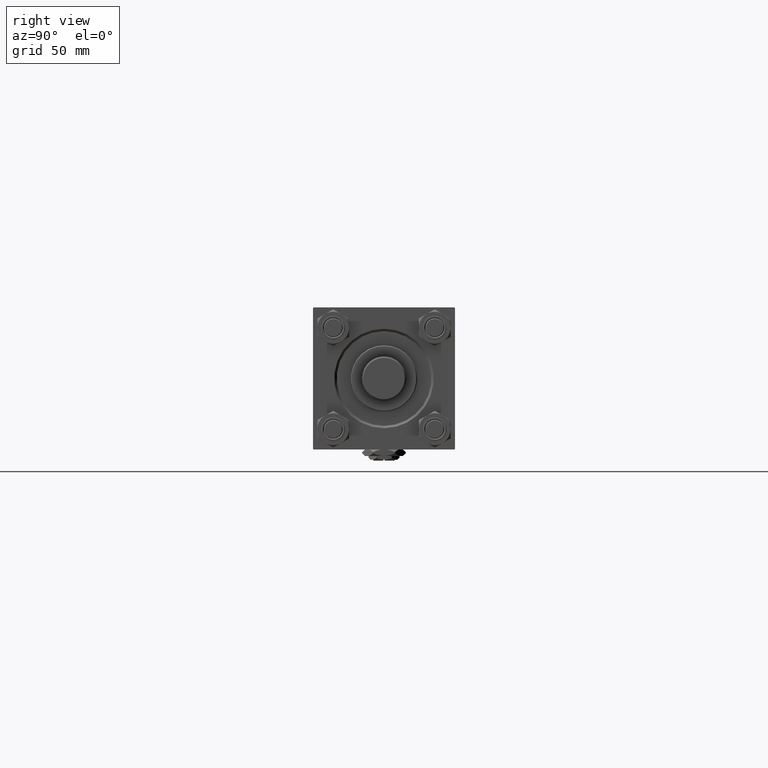
[diagram: clean part render]
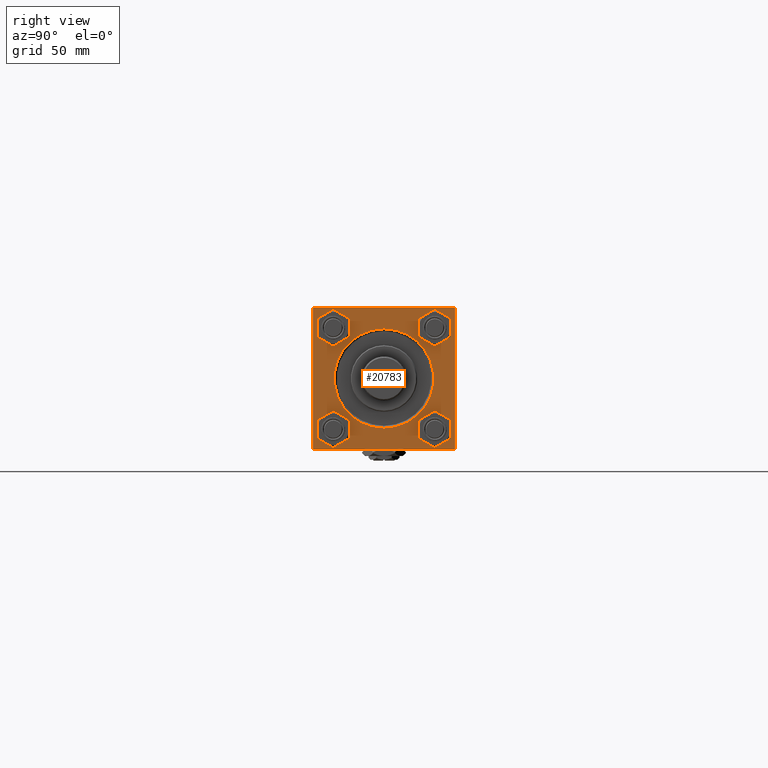
[diagram: same view with one face highlighted and labeled with its STEP entity id]
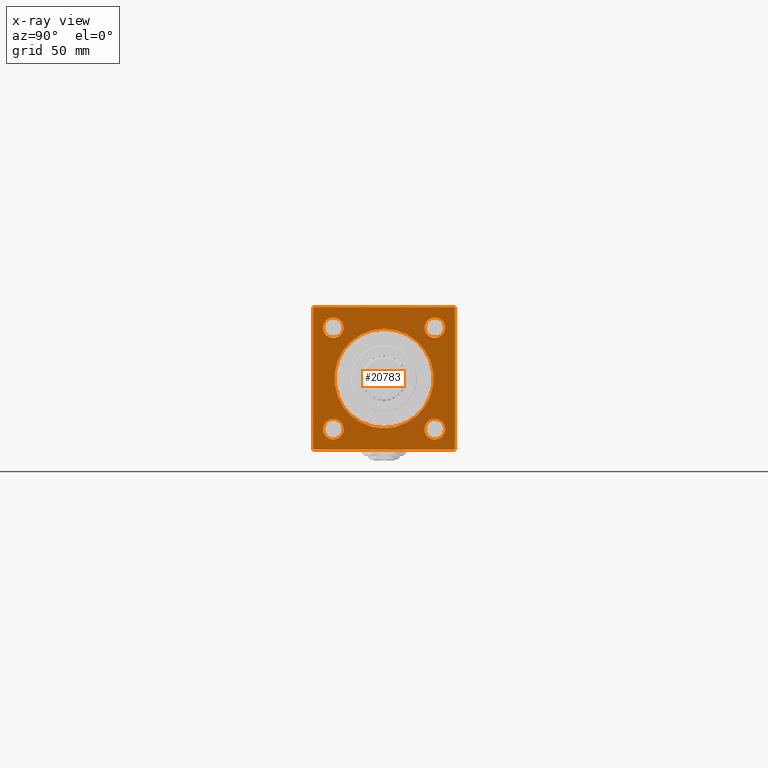
[diagram: x-ray of the same camera — body ghosted, the highlighted face saturated]
A machine part, right view. The second image highlights one B-rep face of the part: STEP entity #20783.
The next image is the same camera in x-ray: the body ghosted, the highlighted face saturated — about 0% of this face is hidden behind the body in this view.
In plain terms, the highlighted planar face has unit normal (-1, 0, 0).
Its self-contained STEP definition (entity closure, byte-faithful):
#265 = CIRCLE ( 'NONE', #44229, 31.49999999999997158 ) ;
#661 = VECTOR ( 'NONE', #19971, 1000.000000000000000 ) ;
#707 = AXIS2_PLACEMENT_3D ( 'NONE', #5040, #21151, #23496 ) ;
#818 = EDGE_CURVE ( 'NONE', #30119, #29970, #12617, .T. ) ;
#936 = DIRECTION ( 'NONE',  ( -1.000000000000000000, -0.000000000000000000, -0.000000000000000000 ) ) ;
#1048 = CARTESIAN_POINT ( 'NONE',  ( 337.9999999999999432, 44.50000000000001421, -45.00000000000000000 ) ) ;
#1353 = EDGE_CURVE ( 'NONE', #13135, #18709, #6486, .T. ) ;
#1443 = DIRECTION ( 'NONE',  ( 0.000000000000000000, 0.000000000000000000, 1.000000000000000000 ) ) ;
#1925 = CARTESIAN_POINT ( 'NONE',  ( 337.9999999999999432, -45.00000000000000000, 44.49999999999998579 ) ) ;
#2301 = DIRECTION ( 'NONE',  ( 0.000000000000000000, -1.000000000000000000, 0.000000000000000000 ) ) ;
#2604 = VERTEX_POINT ( 'NONE', #36918 ) ;
#2655 = EDGE_CURVE ( 'NONE', #15344, #37682, #28987, .T. ) ;
#3373 = CIRCLE ( 'NONE', #37997, 6.500000000000005329 ) ;
#4329 = AXIS2_PLACEMENT_3D ( 'NONE', #19529, #23493, #39655 ) ;
#4353 = LINE ( 'NONE', #24437, #43218 ) ;
#5040 = CARTESIAN_POINT ( 'NONE',  ( 337.9999999999999432, 32.14999999999999147, -32.15000000000000568 ) ) ;
#5101 = CARTESIAN_POINT ( 'NONE',  ( 337.9999999999999432, -45.00000000000000000, 44.49999999999998579 ) ) ;
#5125 = VECTOR ( 'NONE', #2301, 1000.000000000000000 ) ;
#5239 = CARTESIAN_POINT ( 'NONE',  ( 337.9999999999999432, 3.857637417314158745E-15, 31.49999999999997158 ) ) ;
#5437 = ORIENTED_EDGE ( 'NONE', *, *, #8575, .T. ) ;
#5463 = FACE_BOUND ( 'NONE', #7660, .T. ) ;
#6421 = DIRECTION ( 'NONE',  ( 0.000000000000000000, 0.000000000000000000, 1.000000000000000000 ) ) ;
#6486 = CIRCLE ( 'NONE', #14892, 6.500000000000005329 ) ;
#6490 = AXIS2_PLACEMENT_3D ( 'NONE', #17830, #33983, #13870 ) ;
#6811 = CARTESIAN_POINT ( 'NONE',  ( 337.9999999999999432, 32.14999999999999147, -38.65000000000001279 ) ) ;
#6879 = VERTEX_POINT ( 'NONE', #38538 ) ;
#7375 = DIRECTION ( 'NONE',  ( 0.000000000000000000, -0.7071067811865474617, 0.7071067811865474617 ) ) ;
#7660 = EDGE_LOOP ( 'NONE', ( #50433, #9749 ) ) ;
#7831 = CARTESIAN_POINT ( 'NONE',  ( 337.9999999999999432, 45.00000000000001421, 45.00000000000000000 ) ) ;
#8365 = EDGE_CURVE ( 'NONE', #18709, #13135, #20130, .T. ) ;
#8410 = EDGE_CURVE ( 'NONE', #32238, #40380, #15042, .T. ) ;
#8510 = ORIENTED_EDGE ( 'NONE', *, *, #25159, .T. ) ;
#8575 = EDGE_CURVE ( 'NONE', #36207, #33245, #29438, .T. ) ;
#8916 = DIRECTION ( 'NONE',  ( -1.000000000000000000, 0.000000000000000000, -0.000000000000000000 ) ) ;
#9436 = EDGE_LOOP ( 'NONE', ( #30933, #33582 ) ) ;
#9452 = AXIS2_PLACEMENT_3D ( 'NONE', #21576, #8916, #37739 ) ;
#9498 = CIRCLE ( 'NONE', #22990, 31.49999999999997158 ) ;
#9749 = ORIENTED_EDGE ( 'NONE', *, *, #14999, .T. ) ;
#9935 = ORIENTED_EDGE ( 'NONE', *, *, #26340, .T. ) ;
#10004 = VECTOR ( 'NONE', #7375, 1000.000000000000114 ) ;
#10193 = ORIENTED_EDGE ( 'NONE', *, *, #14184, .F. ) ;
#11193 = EDGE_CURVE ( 'NONE', #40016, #26273, #52310, .T. ) ;
#11537 = VERTEX_POINT ( 'NONE', #28651 ) ;
#11572 = VERTEX_POINT ( 'NONE', #5101 ) ;
#11653 = CARTESIAN_POINT ( 'NONE',  ( 337.9999999999999432, 45.00000000000001421, -44.49999999999997158 ) ) ;
#11687 = EDGE_LOOP ( 'NONE', ( #36718, #20064 ) ) ;
#11720 = ORIENTED_EDGE ( 'NONE', *, *, #24142, .T. ) ;
#12378 = VECTOR ( 'NONE', #28752, 1000.000000000000114 ) ;
#12617 = LINE ( 'NONE', #23985, #12378 ) ;
#12888 = FACE_BOUND ( 'NONE', #9436, .T. ) ;
#13135 = VERTEX_POINT ( 'NONE', #14192 ) ;
#13870 = DIRECTION ( 'NONE',  ( 0.000000000000000000, 0.000000000000000000, 1.000000000000000000 ) ) ;
#14184 = EDGE_CURVE ( 'NONE', #30119, #37682, #22374, .T. ) ;
#14192 = CARTESIAN_POINT ( 'NONE',  ( 337.9999999999999432, 32.14999999999999147, -25.64999999999999858 ) ) ;
#14802 = ORIENTED_EDGE ( 'NONE', *, *, #42095, .T. ) ;
#14892 = AXIS2_PLACEMENT_3D ( 'NONE', #41254, #49700, #25620 ) ;
#14999 = EDGE_CURVE ( 'NONE', #26273, #40016, #24586, .T. ) ;
#15042 = LINE ( 'NONE', #51282, #10004 ) ;
#15101 = AXIS2_PLACEMENT_3D ( 'NONE', #21528, #25239, #1443 ) ;
#15344 = VERTEX_POINT ( 'NONE', #23690 ) ;
#16104 = ORIENTED_EDGE ( 'NONE', *, *, #19727, .F. ) ;
#17830 = CARTESIAN_POINT ( 'NONE',  ( 337.9999999999999432, 32.14999999999999147, 32.15000000000000568 ) ) ;
#17865 = CARTESIAN_POINT ( 'NONE',  ( 337.9999999999999432, -32.14999999999997726, 25.65000000000000568 ) ) ;
#18076 = EDGE_CURVE ( 'NONE', #32788, #32763, #9498, .T. ) ;
#18212 = ORIENTED_EDGE ( 'NONE', *, *, #29649, .T. ) ;
#18314 = CARTESIAN_POINT ( 'NONE',  ( 337.9999999999999432, 0.000000000000000000, 0.000000000000000000 ) ) ;
#18709 = VERTEX_POINT ( 'NONE', #6811 ) ;
#19529 = CARTESIAN_POINT ( 'NONE',  ( 337.9999999999999432, -32.14999999999997726, -32.15000000000001279 ) ) ;
#19727 = EDGE_CURVE ( 'NONE', #32238, #29970, #4353, .T. ) ;
#19792 = DIRECTION ( 'NONE',  ( 0.000000000000000000, 0.000000000000000000, 1.000000000000000000 ) ) ;
#19850 = CARTESIAN_POINT ( 'NONE',  ( 337.9999999999999432, 45.00000000000001421, 44.49999999999994316 ) ) ;
#19971 = DIRECTION ( 'NONE',  ( 0.000000000000000000, -1.000000000000000000, -1.541976423090495140E-16 ) ) ;
#20064 = ORIENTED_EDGE ( 'NONE', *, *, #50722, .T. ) ;
#20130 = CIRCLE ( 'NONE', #707, 6.500000000000005329 ) ;
#20783 = ADVANCED_FACE ( 'NONE', ( #5463, #12888, #33518, #29024, #49631, #45671 ), #21835, .F. ) ;
#20917 = VECTOR ( 'NONE', #25971, 1000.000000000000000 ) ;
#21151 = DIRECTION ( 'NONE',  ( -1.000000000000000000, -0.000000000000000000, -0.000000000000000000 ) ) ;
#21528 = CARTESIAN_POINT ( 'NONE',  ( 337.9999999999999432, 32.14999999999999147, 32.15000000000000568 ) ) ;
#21576 = CARTESIAN_POINT ( 'NONE',  ( 337.9999999999999432, 0.000000000000000000, 0.000000000000000000 ) ) ;
#21835 = PLANE ( 'NONE',  #9452 ) ;
#21865 = CARTESIAN_POINT ( 'NONE',  ( 337.9999999999999432, 0.000000000000000000, -31.49999999999997158 ) ) ;
#22374 = LINE ( 'NONE', #38541, #5125 ) ;
#22990 = AXIS2_PLACEMENT_3D ( 'NONE', #18314, #38946, #6421 ) ;
#23274 = CARTESIAN_POINT ( 'NONE',  ( 337.9999999999999432, -45.00000000000000000, 44.99999999999998579 ) ) ;
#23493 = DIRECTION ( 'NONE',  ( -1.000000000000000000, -0.000000000000000000, -0.000000000000000000 ) ) ;
#23496 = DIRECTION ( 'NONE',  ( 0.000000000000000000, 0.000000000000000000, 1.000000000000000000 ) ) ;
#23690 = CARTESIAN_POINT ( 'NONE',  ( 337.9999999999999432, -44.99999999999999289, -44.49999999999997158 ) ) ;
#23759 = CARTESIAN_POINT ( 'NONE',  ( 337.9999999999999432, -32.14999999999997726, 32.15000000000001279 ) ) ;
#23846 = ORIENTED_EDGE ( 'NONE', *, *, #8410, .T. ) ;
#23985 = CARTESIAN_POINT ( 'NONE',  ( 337.9999999999999432, 45.00000000000001421, -44.50000000000000000 ) ) ;
#24142 = EDGE_CURVE ( 'NONE', #11572, #15344, #43667, .T. ) ;
#24214 = CARTESIAN_POINT ( 'NONE',  ( 337.9999999999999432, -44.49999999999998579, -45.00000000000000000 ) ) ;
#24437 = CARTESIAN_POINT ( 'NONE',  ( 337.9999999999999432, 45.00000000000001421, 45.00000000000000000 ) ) ;
#24586 = CIRCLE ( 'NONE', #4329, 6.500000000000005329 ) ;
#25159 = EDGE_CURVE ( 'NONE', #40380, #11537, #44066, .T. ) ;
#25239 = DIRECTION ( 'NONE',  ( -1.000000000000000000, -0.000000000000000000, -0.000000000000000000 ) ) ;
#25620 = DIRECTION ( 'NONE',  ( 0.000000000000000000, 0.000000000000000000, 1.000000000000000000 ) ) ;
#25670 = ORIENTED_EDGE ( 'NONE', *, *, #818, .T. ) ;
#25971 = DIRECTION ( 'NONE',  ( -0.000000000000000000, -0.7071067811865081598, -0.7071067811865868746 ) ) ;
#26273 = VERTEX_POINT ( 'NONE', #39587 ) ;
#26340 = EDGE_CURVE ( 'NONE', #11537, #11572, #46353, .T. ) ;
#27474 = DIRECTION ( 'NONE',  ( 0.000000000000000000, 0.000000000000000000, 1.000000000000000000 ) ) ;
#27790 = ORIENTED_EDGE ( 'NONE', *, *, #18076, .T. ) ;
#28153 = EDGE_CURVE ( 'NONE', #2604, #6879, #45523, .T. ) ;
#28475 = CARTESIAN_POINT ( 'NONE',  ( 337.9999999999999432, 0.000000000000000000, 0.000000000000000000 ) ) ;
#28651 = CARTESIAN_POINT ( 'NONE',  ( 337.9999999999999432, -44.50000000000002842, 44.99999999999998579 ) ) ;
#28752 = DIRECTION ( 'NONE',  ( -0.000000000000000000, 0.7071067811865474617, 0.7071067811865474617 ) ) ;
#28987 = LINE ( 'NONE', #24214, #46251 ) ;
#29024 = FACE_BOUND ( 'NONE', #34346, .T. ) ;
#29438 = CIRCLE ( 'NONE', #46320, 6.500000000000005329 ) ;
#29514 = AXIS2_PLACEMENT_3D ( 'NONE', #36384, #936, #48809 ) ;
#29649 = EDGE_CURVE ( 'NONE', #33245, #36207, #3373, .T. ) ;
#29970 = VERTEX_POINT ( 'NONE', #11653 ) ;
#30119 = VERTEX_POINT ( 'NONE', #1048 ) ;
#30843 = CARTESIAN_POINT ( 'NONE',  ( 337.9999999999999432, 44.49999999999995737, 45.00000000000000000 ) ) ;
#30933 = ORIENTED_EDGE ( 'NONE', *, *, #8365, .T. ) ;
#32190 = DIRECTION ( 'NONE',  ( -1.000000000000000000, -0.000000000000000000, -0.000000000000000000 ) ) ;
#32238 = VERTEX_POINT ( 'NONE', #19850 ) ;
#32395 = DIRECTION ( 'NONE',  ( 0.000000000000000000, 0.000000000000000000, -1.000000000000000000 ) ) ;
#32506 = CARTESIAN_POINT ( 'NONE',  ( 337.9999999999999432, -32.14999999999997726, 32.15000000000001279 ) ) ;
#32710 = CIRCLE ( 'NONE', #6490, 6.500000000000005329 ) ;
#32763 = VERTEX_POINT ( 'NONE', #5239 ) ;
#32788 = VERTEX_POINT ( 'NONE', #21865 ) ;
#33245 = VERTEX_POINT ( 'NONE', #42713 ) ;
#33518 = FACE_BOUND ( 'NONE', #11687, .T. ) ;
#33582 = ORIENTED_EDGE ( 'NONE', *, *, #1353, .T. ) ;
#33983 = DIRECTION ( 'NONE',  ( -1.000000000000000000, -0.000000000000000000, -0.000000000000000000 ) ) ;
#34346 = EDGE_LOOP ( 'NONE', ( #5437, #18212 ) ) ;
#35369 = DIRECTION ( 'NONE',  ( 0.000000000000000000, 0.000000000000000000, 1.000000000000000000 ) ) ;
#36207 = VERTEX_POINT ( 'NONE', #17865 ) ;
#36384 = CARTESIAN_POINT ( 'NONE',  ( 337.9999999999999432, -32.14999999999997726, -32.15000000000001279 ) ) ;
#36718 = ORIENTED_EDGE ( 'NONE', *, *, #28153, .T. ) ;
#36918 = CARTESIAN_POINT ( 'NONE',  ( 337.9999999999999432, 32.14999999999999147, 25.64999999999999858 ) ) ;
#37496 = ORIENTED_EDGE ( 'NONE', *, *, #2655, .T. ) ;
#37682 = VERTEX_POINT ( 'NONE', #42557 ) ;
#37739 = DIRECTION ( 'NONE',  ( -0.000000000000000000, 0.000000000000000000, 1.000000000000000000 ) ) ;
#37997 = AXIS2_PLACEMENT_3D ( 'NONE', #23759, #47586, #27474 ) ;
#38144 = CARTESIAN_POINT ( 'NONE',  ( 337.9999999999999432, -32.14999999999997726, -38.65000000000001990 ) ) ;
#38538 = CARTESIAN_POINT ( 'NONE',  ( 337.9999999999999432, 32.14999999999999147, 38.65000000000001990 ) ) ;
#38541 = CARTESIAN_POINT ( 'NONE',  ( 337.9999999999999432, 45.00000000000001421, -45.00000000000000000 ) ) ;
#38946 = DIRECTION ( 'NONE',  ( -1.000000000000000000, -0.000000000000000000, -0.000000000000000000 ) ) ;
#39587 = CARTESIAN_POINT ( 'NONE',  ( 337.9999999999999432, -32.14999999999997726, -25.65000000000000568 ) ) ;
#39655 = DIRECTION ( 'NONE',  ( 0.000000000000000000, 0.000000000000000000, 1.000000000000000000 ) ) ;
#39699 = DIRECTION ( 'NONE',  ( 0.000000000000000000, 7.709882115452478166E-17, -1.000000000000000000 ) ) ;
#40016 = VERTEX_POINT ( 'NONE', #38144 ) ;
#40368 = DIRECTION ( 'NONE',  ( 0.000000000000000000, 0.7071067811865525687, -0.7071067811865425767 ) ) ;
#40380 = VERTEX_POINT ( 'NONE', #30843 ) ;
#41254 = CARTESIAN_POINT ( 'NONE',  ( 337.9999999999999432, 32.14999999999999147, -32.15000000000000568 ) ) ;
#42095 = EDGE_CURVE ( 'NONE', #32763, #32788, #265, .T. ) ;
#42557 = CARTESIAN_POINT ( 'NONE',  ( 337.9999999999999432, -44.49999999999995737, -45.00000000000000000 ) ) ;
#42713 = CARTESIAN_POINT ( 'NONE',  ( 337.9999999999999432, -32.14999999999997726, 38.65000000000001990 ) ) ;
#43218 = VECTOR ( 'NONE', #32395, 1000.000000000000000 ) ;
#43667 = LINE ( 'NONE', #23274, #44297 ) ;
#44066 = LINE ( 'NONE', #7831, #661 ) ;
#44150 = DIRECTION ( 'NONE',  ( -1.000000000000000000, -0.000000000000000000, -0.000000000000000000 ) ) ;
#44229 = AXIS2_PLACEMENT_3D ( 'NONE', #28475, #32190, #35369 ) ;
#44297 = VECTOR ( 'NONE', #39699, 1000.000000000000000 ) ;
#45523 = CIRCLE ( 'NONE', #15101, 6.500000000000005329 ) ;
#45606 = EDGE_LOOP ( 'NONE', ( #27790, #14802 ) ) ;
#45671 = FACE_OUTER_BOUND ( 'NONE', #46961, .T. ) ;
#46251 = VECTOR ( 'NONE', #40368, 999.9999999999998863 ) ;
#46320 = AXIS2_PLACEMENT_3D ( 'NONE', #32506, #44150, #19792 ) ;
#46353 = LINE ( 'NONE', #1925, #20917 ) ;
#46961 = EDGE_LOOP ( 'NONE', ( #11720, #37496, #10193, #25670, #16104, #23846, #8510, #9935 ) ) ;
#47586 = DIRECTION ( 'NONE',  ( -1.000000000000000000, -0.000000000000000000, -0.000000000000000000 ) ) ;
#48809 = DIRECTION ( 'NONE',  ( 0.000000000000000000, 0.000000000000000000, 1.000000000000000000 ) ) ;
#49631 = FACE_BOUND ( 'NONE', #45606, .T. ) ;
#49700 = DIRECTION ( 'NONE',  ( -1.000000000000000000, -0.000000000000000000, -0.000000000000000000 ) ) ;
#50433 = ORIENTED_EDGE ( 'NONE', *, *, #11193, .T. ) ;
#50722 = EDGE_CURVE ( 'NONE', #6879, #2604, #32710, .T. ) ;
#51282 = CARTESIAN_POINT ( 'NONE',  ( 337.9999999999999432, 44.49999999999995737, 45.00000000000000000 ) ) ;
#52310 = CIRCLE ( 'NONE', #29514, 6.500000000000005329 ) ;